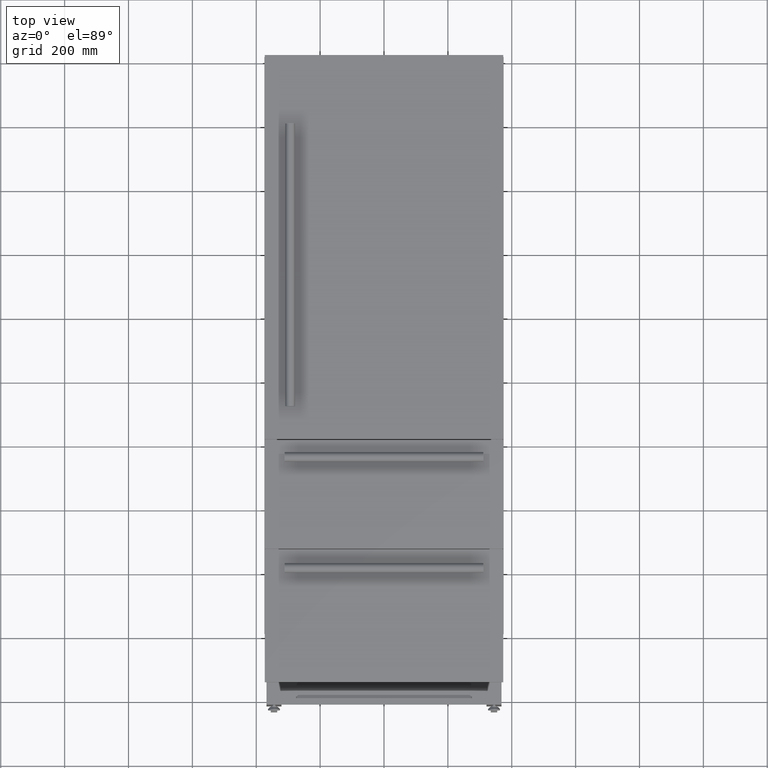
[diagram: clean part render]
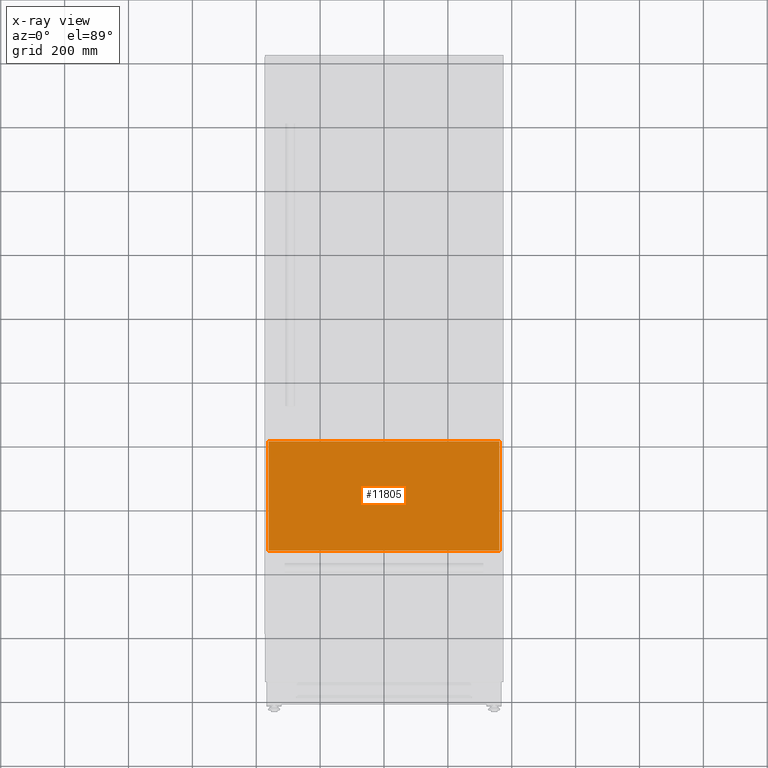
[diagram: x-ray — body ghosted, one internal face saturated and labeled with its STEP entity id]
A machine part, top view, then the same camera in x-ray: the body is ghosted and one INTERNAL B-rep face — a face not visible from any outside direction — is saturated and labeled: STEP entity #11805.
In plain terms, the highlighted planar face has unit normal (0, 0, -1).
Its self-contained STEP definition (entity closure, byte-faithful):
#78 = ORIENTED_EDGE ( 'NONE', *, *, #9736, .F. ) ;
#132 = DIRECTION ( 'NONE',  ( 0.0000000000000000000, 0.0000000000000000000, -1.000000000000000000 ) ) ;
#839 = LINE ( 'NONE', #10880, #9252 ) ;
#1200 = VERTEX_POINT ( 'NONE', #6247 ) ;
#1248 = VERTEX_POINT ( 'NONE', #6450 ) ;
#1360 = PLANE ( 'NONE',  #10399 ) ;
#2791 = FACE_OUTER_BOUND ( 'NONE', #12775, .T. ) ;
#2882 = LINE ( 'NONE', #11583, #8386 ) ;
#3416 = DIRECTION ( 'NONE',  ( -1.000000000000000000, 0.0000000000000000000, -0.0000000000000000000 ) ) ;
#3894 = LINE ( 'NONE', #8548, #9408 ) ;
#4246 = DIRECTION ( 'NONE',  ( 1.000000000000000000, 1.536428211312854800E-016, 0.0000000000000000000 ) ) ;
#6247 = CARTESIAN_POINT ( 'NONE',  ( -361.2999997170346100, -535.1500000000000900, 290.0000000000000600 ) ) ;
#6361 = EDGE_CURVE ( 'NONE', #1200, #13578, #839, .T. ) ;
#6450 = CARTESIAN_POINT ( 'NONE',  ( 361.2999997170346100, -193.1500000000000100, 290.0000000000000600 ) ) ;
#6797 = ORIENTED_EDGE ( 'NONE', *, *, #7194, .F. ) ;
#7182 = DIRECTION ( 'NONE',  ( 1.623133076937363600E-016, 1.000000000000000000, 0.0000000000000000000 ) ) ;
#7194 = EDGE_CURVE ( 'NONE', #7605, #1200, #3894, .T. ) ;
#7605 = VERTEX_POINT ( 'NONE', #9267 ) ;
#8386 = VECTOR ( 'NONE', #7182, 1000.000000000000000 ) ;
#8548 = CARTESIAN_POINT ( 'NONE',  ( -361.2999997170346100, -535.1500000000000900, 290.0000000000000600 ) ) ;
#9252 = VECTOR ( 'NONE', #4246, 1000.000000000000000 ) ;
#9267 = CARTESIAN_POINT ( 'NONE',  ( -361.2999997170346100, -193.1500000000000100, 290.0000000000000600 ) ) ;
#9408 = VECTOR ( 'NONE', #14003, 1000.000000000000000 ) ;
#9705 = VECTOR ( 'NONE', #12256, 1000.000000000000000 ) ;
#9736 = EDGE_CURVE ( 'NONE', #13578, #1248, #2882, .T. ) ;
#10168 = CARTESIAN_POINT ( 'NONE',  ( 0.0000000000000000000, 0.0000000000000000000, 290.0000000000000600 ) ) ;
#10399 = AXIS2_PLACEMENT_3D ( 'NONE', #10168, #132, #3416 ) ;
#10880 = CARTESIAN_POINT ( 'NONE',  ( -361.2999997170346100, -535.1500000000000900, 290.0000000000000600 ) ) ;
#11123 = EDGE_CURVE ( 'NONE', #1248, #7605, #12298, .T. ) ;
#11209 = CARTESIAN_POINT ( 'NONE',  ( -361.2999997170346100, -193.1500000000000100, 290.0000000000000600 ) ) ;
#11583 = CARTESIAN_POINT ( 'NONE',  ( 361.2999997170345500, -535.1499999999999800, 290.0000000000000600 ) ) ;
#11805 = ADVANCED_FACE ( 'NONE', ( #2791 ), #1360, .T. ) ;
#12092 = CARTESIAN_POINT ( 'NONE',  ( 361.2999997170345500, -535.1499999999999800, 290.0000000000000600 ) ) ;
#12256 = DIRECTION ( 'NONE',  ( -1.000000000000000000, -0.0000000000000000000, -0.0000000000000000000 ) ) ;
#12298 = LINE ( 'NONE', #11209, #9705 ) ;
#12775 = EDGE_LOOP ( 'NONE', ( #78, #12805, #6797, #13021 ) ) ;
#12805 = ORIENTED_EDGE ( 'NONE', *, *, #6361, .F. ) ;
#13021 = ORIENTED_EDGE ( 'NONE', *, *, #11123, .F. ) ;
#13578 = VERTEX_POINT ( 'NONE', #12092 ) ;
#14003 = DIRECTION ( 'NONE',  ( 1.623133076937362900E-016, -1.000000000000000000, -0.0000000000000000000 ) ) ;